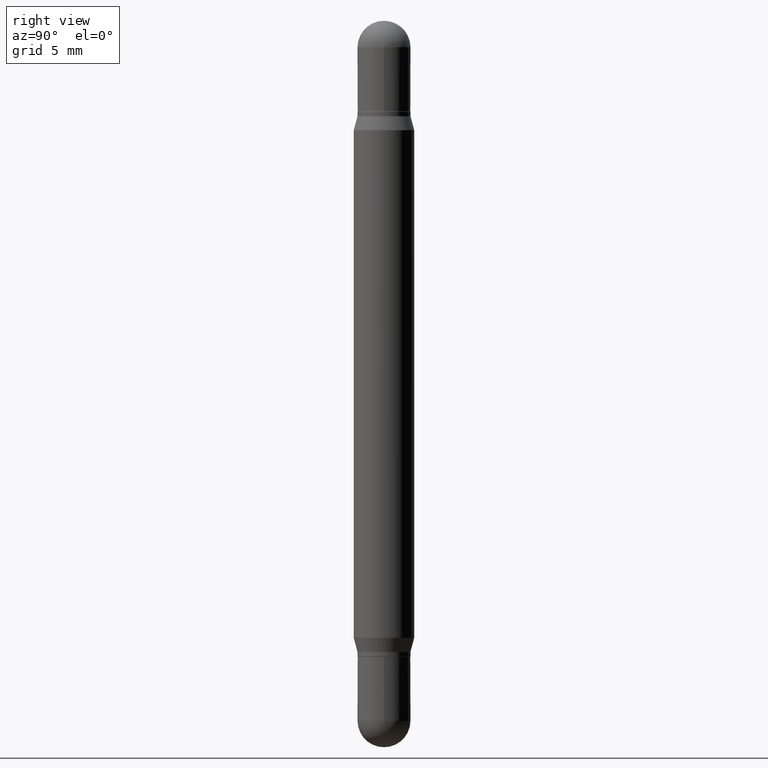
[diagram: clean part render]
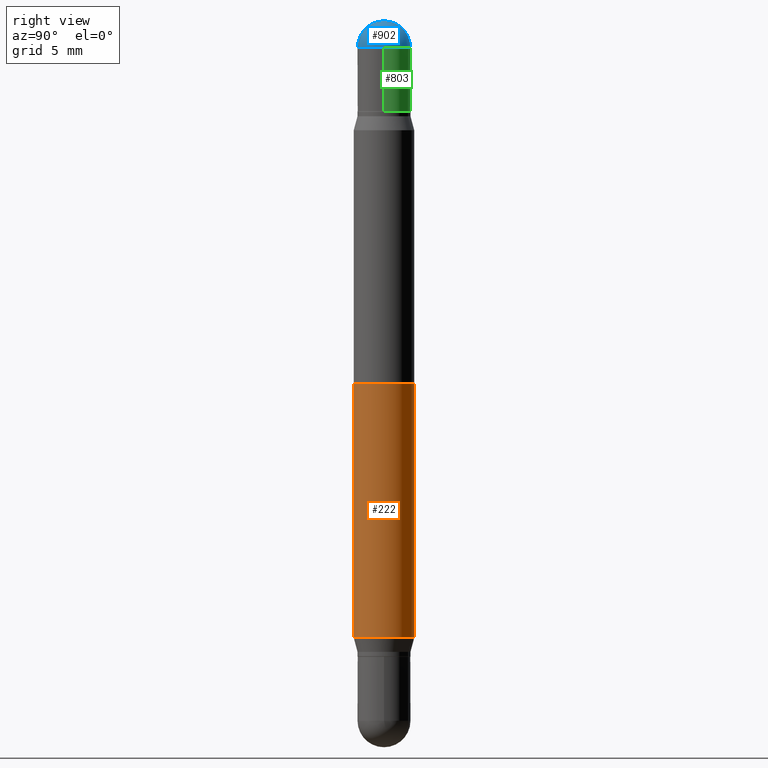
[diagram: same view with three faces highlighted in distinct colors, each labeled with its STEP entity id]
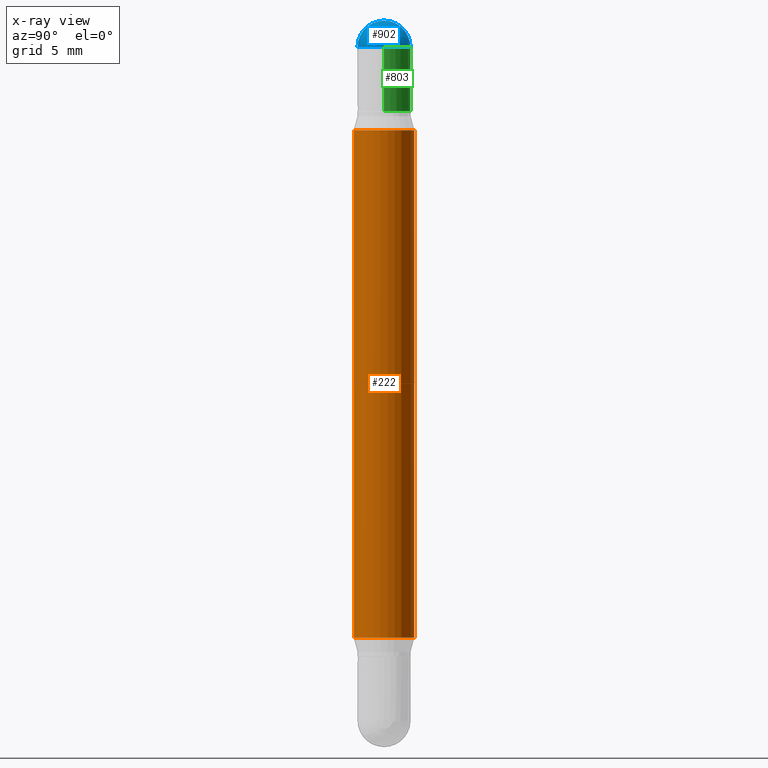
[diagram: x-ray of the same camera — body ghosted, the three highlighted faces saturated]
A machine part, right view with three faces highlighted in distinct colors.
The next image is the same camera in x-ray (body ghosted, the three faces saturated) — at least one of them is partly hidden behind the body in this view.
Their STEP definitions:

[orange] entity #222 — the highlighted cylindrical surface (edge-blend (fillet) strip) has radius 1.5875 mm, axis along (-0, -0, -1).
#43 = DIRECTION ( 'NONE',  ( -6.982962677686265922E-15, -1.000000000000000000, 4.370956789862821150E-15 ) ) ;
#83 = CYLINDRICAL_SURFACE ( 'NONE', #817, 0.06250000000000000000 ) ;
#109 = DIRECTION ( 'NONE',  ( 2.445489716498267051E-29, 3.479644411736372261E-15, 1.000000000000000000 ) ) ;
#165 = FACE_OUTER_BOUND ( 'NONE', #477, .T. ) ;
#168 = AXIS2_PLACEMENT_3D ( 'NONE', #550, #810, #43 ) ;
#200 = VERTEX_POINT ( 'NONE', #1025 ) ;
#207 = VECTOR ( 'NONE', #775, 39.37007874015748143 ) ;
#222 = ADVANCED_FACE ( 'NONE', ( #165 ), #83, .T. ) ;
#244 = DIRECTION ( 'NONE',  ( -6.982962677686265922E-15, -1.000000000000000000, 4.370956789862821150E-15 ) ) ;
#247 = CARTESIAN_POINT ( 'NONE',  ( 4.287811248607206733E-16, 0.06249999999999477501, -1.500000000000000666 ) ) ;
#274 = ORIENTED_EDGE ( 'NONE', *, *, #483, .T. ) ;
#281 = AXIS2_PLACEMENT_3D ( 'NONE', #537, #109, #1063 ) ;
#311 = EDGE_CURVE ( 'NONE', #1095, #782, #435, .T. ) ;
#385 = LINE ( 'NONE', #719, #416 ) ;
#390 = ORIENTED_EDGE ( 'NONE', *, *, #802, .T. ) ;
#416 = VECTOR ( 'NONE', #731, 39.37007874015748143 ) ;
#421 = CARTESIAN_POINT ( 'NONE',  ( 0.000000000000000000, -5.228321854365732350E-15, -1.500000000000000444 ) ) ;
#435 = CIRCLE ( 'NONE', #281, 0.06250000000000000000 ) ;
#441 = CARTESIAN_POINT ( 'NONE',  ( -4.364351673553605094E-16, -0.06250000000000079103, -0.2261099962990385792 ) ) ;
#475 = VERTEX_POINT ( 'NONE', #648 ) ;
#477 = EDGE_LOOP ( 'NONE', ( #860, #734, #390, #274 ) ) ;
#483 = EDGE_CURVE ( 'NONE', #200, #475, #741, .T. ) ;
#537 = CARTESIAN_POINT ( 'NONE',  ( 3.115284904000640864E-29, -7.956376218208540482E-16, -0.2261099962990387735 ) ) ;
#550 = CARTESIAN_POINT ( 'NONE',  ( 3.115284904000640864E-29, -4.447725029332160911E-15, -1.273890003700961726 ) ) ;
#588 = LINE ( 'NONE', #247, #207 ) ;
#648 = CARTESIAN_POINT ( 'NONE',  ( 4.287811248607390144E-16, 0.06249999999999555217, -1.273890003700961948 ) ) ;
#719 = CARTESIAN_POINT ( 'NONE',  ( -4.364351673553916201E-16, -0.06250000000000521805, -1.500000000000000222 ) ) ;
#731 = DIRECTION ( 'NONE',  ( -2.445489716498267051E-29, -3.479644411736372655E-15, -1.000000000000000000 ) ) ;
#734 = ORIENTED_EDGE ( 'NONE', *, *, #311, .F. ) ;
#741 = CIRCLE ( 'NONE', #168, 0.06250000000000000000 ) ;
#766 = DIRECTION ( 'NONE',  ( -2.445489716498267051E-29, -3.479644411736372261E-15, -1.000000000000000000 ) ) ;
#775 = DIRECTION ( 'NONE',  ( -2.445489716498267051E-29, -3.479644411736372655E-15, -1.000000000000000000 ) ) ;
#782 = VERTEX_POINT ( 'NONE', #975 ) ;
#802 = EDGE_CURVE ( 'NONE', #1095, #200, #385, .T. ) ;
#810 = DIRECTION ( 'NONE',  ( -2.445489716498267051E-29, 3.491451394084601576E-15, 1.000000000000000000 ) ) ;
#817 = AXIS2_PLACEMENT_3D ( 'NONE', #421, #766, #244 ) ;
#860 = ORIENTED_EDGE ( 'NONE', *, *, #1054, .F. ) ;
#975 = CARTESIAN_POINT ( 'NONE',  ( 4.287811248607517840E-16, 0.06249999999999920203, -0.2261099962990389678 ) ) ;
#1025 = CARTESIAN_POINT ( 'NONE',  ( -4.364351673553604601E-16, -0.06250000000000444089, -1.273890003700961282 ) ) ;
#1054 = EDGE_CURVE ( 'NONE', #782, #475, #588, .T. ) ;
#1063 = DIRECTION ( 'NONE',  ( -6.982962677686265922E-15, -1.000000000000000000, 3.278217592397115862E-15 ) ) ;
#1095 = VERTEX_POINT ( 'NONE', #441 ) ;

[blue] entity #902 — the highlighted spherical surface has radius 1.3894 mm.
#27 = CARTESIAN_POINT ( 'NONE',  ( 3.529758305977566399E-29, -2.059338832340114475E-16, -0.05470000000000037332 ) ) ;
#33 = DIRECTION ( 'NONE',  ( 1.000000000000000000, -6.982962677686268288E-15, 0.000000000000000000 ) ) ;
#62 = ORIENTED_EDGE ( 'NONE', *, *, #1011, .T. ) ;
#80 = VERTEX_POINT ( 'NONE', #646 ) ;
#89 = CARTESIAN_POINT ( 'NONE',  ( 3.534436065579377749E-29, -1.992350652426753183E-16, -0.05470000000000037332 ) ) ;
#108 = CIRCLE ( 'NONE', #632, 0.05470000000000019291 ) ;
#199 = DIRECTION ( 'NONE',  ( -1.000000000000000000, 6.860497997771530774E-15, 5.827999781331232286E-31 ) ) ;
#201 = DIRECTION ( 'NONE',  ( 1.000000000000000000, -6.982962677686268288E-15, 0.000000000000000000 ) ) ;
#210 = DIRECTION ( 'NONE',  ( -1.000000000000000000, 6.982962677686265922E-15, 1.566701062080020624E-31 ) ) ;
#255 = ORIENTED_EDGE ( 'NONE', *, *, #888, .F. ) ;
#265 = CARTESIAN_POINT ( 'NONE',  ( -3.819680584694040760E-16, -0.05470000000000030393, -0.05470000000000018597 ) ) ;
#282 = DIRECTION ( 'NONE',  ( 2.445468806185136597E-29, 3.479614466977828254E-15, 1.000000000000000000 ) ) ;
#287 = CARTESIAN_POINT ( 'NONE',  ( 3.529758305977566399E-29, -2.059338832340114475E-16, -0.05470000000000037332 ) ) ;
#293 = FACE_OUTER_BOUND ( 'NONE', #946, .T. ) ;
#298 = CARTESIAN_POINT ( 'NONE',  ( 3.752692404781387717E-16, 0.05469999999999989454, -0.05470000000000056067 ) ) ;
#301 = AXIS2_PLACEMENT_3D ( 'NONE', #27, #210, #874 ) ;
#350 = CARTESIAN_POINT ( 'NONE',  ( 3.529758305977566399E-29, -2.059338832340114475E-16, -0.05470000000000037332 ) ) ;
#366 = EDGE_CURVE ( 'NONE', #80, #748, #870, .T. ) ;
#374 = SPHERICAL_SURFACE ( 'NONE', #301, 0.05470000000000019291 ) ;
#429 = ORIENTED_EDGE ( 'NONE', *, *, #366, .T. ) ;
#452 = DIRECTION ( 'NONE',  ( 2.445468806185136597E-29, 3.479614466977828254E-15, 1.000000000000000000 ) ) ;
#464 = VERTEX_POINT ( 'NONE', #645 ) ;
#583 = DIRECTION ( 'NONE',  ( 1.000000000000000000, -6.982962677686265922E-15, -1.566701062080016245E-31 ) ) ;
#632 = AXIS2_PLACEMENT_3D ( 'NONE', #350, #583, #948 ) ;
#641 = CIRCLE ( 'NONE', #1022, 0.05470000000000019291 ) ;
#645 = CARTESIAN_POINT ( 'NONE',  ( 3.661186569874987869E-29, -1.894838088599157718E-17, -1.792775245842172799E-16 ) ) ;
#646 = CARTESIAN_POINT ( 'NONE',  ( 0.05470000000000000556, -8.113796207026979199E-16, -0.05470000000000037332 ) ) ;
#743 = ORIENTED_EDGE ( 'NONE', *, *, #825, .T. ) ;
#748 = VERTEX_POINT ( 'NONE', #298 ) ;
#795 = DIRECTION ( 'NONE',  ( -6.860497997771530774E-15, -1.000000000000000000, 0.000000000000000000 ) ) ;
#799 = AXIS2_PLACEMENT_3D ( 'NONE', #89, #452, #33 ) ;
#800 = CIRCLE ( 'NONE', #850, 0.05470000000000000556 ) ;
#825 = EDGE_CURVE ( 'NONE', #1038, #80, #800, .T. ) ;
#850 = AXIS2_PLACEMENT_3D ( 'NONE', #876, #282, #201 ) ;
#870 = CIRCLE ( 'NONE', #799, 0.05470000000000000556 ) ;
#874 = DIRECTION ( 'NONE',  ( -6.982962677686265922E-15, -1.000000000000000000, 3.433538383261744671E-15 ) ) ;
#876 = CARTESIAN_POINT ( 'NONE',  ( 3.534436065579377749E-29, -1.992350652426753183E-16, -0.05470000000000037332 ) ) ;
#888 = EDGE_CURVE ( 'NONE', #464, #748, #641, .T. ) ;
#902 = ADVANCED_FACE ( 'NONE', ( #293 ), #374, .T. ) ;
#946 = EDGE_LOOP ( 'NONE', ( #255, #62, #743, #429 ) ) ;
#948 = DIRECTION ( 'NONE',  ( 6.982962677686266711E-15, 1.000000000000000000, 0.000000000000000000 ) ) ;
#1011 = EDGE_CURVE ( 'NONE', #464, #1038, #108, .T. ) ;
#1022 = AXIS2_PLACEMENT_3D ( 'NONE', #287, #199, #795 ) ;
#1038 = VERTEX_POINT ( 'NONE', #265 ) ;

[green] entity #803 — the highlighted cylindrical surface (edge-blend (fillet) strip) has radius 1.3894 mm, axis along (-0, -0, -1).
#4 = EDGE_LOOP ( 'NONE', ( #185, #101, #19, #246, #647 ) ) ;
#19 = ORIENTED_EDGE ( 'NONE', *, *, #366, .F. ) ;
#23 = DIRECTION ( 'NONE',  ( 1.000000000000000000, -6.982962677686260400E-15, 0.000000000000000000 ) ) ;
#33 = DIRECTION ( 'NONE',  ( 1.000000000000000000, -6.982962677686268288E-15, 0.000000000000000000 ) ) ;
#35 = DIRECTION ( 'NONE',  ( 1.000000000000000000, -6.982962677686268288E-15, 0.000000000000000000 ) ) ;
#73 = CIRCLE ( 'NONE', #732, 0.05470000000000000556 ) ;
#80 = VERTEX_POINT ( 'NONE', #646 ) ;
#89 = CARTESIAN_POINT ( 'NONE',  ( 3.534436065579377749E-29, -1.992350652426753183E-16, -0.05470000000000037332 ) ) ;
#101 = ORIENTED_EDGE ( 'NONE', *, *, #814, .F. ) ;
#107 = CARTESIAN_POINT ( 'NONE',  ( 0.000000000000000000, -5.228321854365732350E-15, -1.500000000000000444 ) ) ;
#112 = DIRECTION ( 'NONE',  ( 2.445468806185136597E-29, 3.479614466977828254E-15, 1.000000000000000000 ) ) ;
#118 = DIRECTION ( 'NONE',  ( 1.000000000000000000, -6.982962677686266711E-15, 0.000000000000000000 ) ) ;
#185 = ORIENTED_EDGE ( 'NONE', *, *, #915, .F. ) ;
#196 = AXIS2_PLACEMENT_3D ( 'NONE', #377, #279, #118 ) ;
#209 = EDGE_CURVE ( 'NONE', #80, #587, #248, .T. ) ;
#225 = VECTOR ( 'NONE', #845, 39.37007874015748143 ) ;
#228 = AXIS2_PLACEMENT_3D ( 'NONE', #107, #967, #23 ) ;
#246 = ORIENTED_EDGE ( 'NONE', *, *, #209, .T. ) ;
#248 = LINE ( 'NONE', #427, #225 ) ;
#279 = DIRECTION ( 'NONE',  ( 2.445468806185136597E-29, 3.479614466977828254E-15, 1.000000000000000000 ) ) ;
#298 = CARTESIAN_POINT ( 'NONE',  ( 3.752692404781387717E-16, 0.05469999999999989454, -0.05470000000000056067 ) ) ;
#366 = EDGE_CURVE ( 'NONE', #80, #748, #870, .T. ) ;
#369 = FACE_OUTER_BOUND ( 'NONE', #4, .T. ) ;
#377 = CARTESIAN_POINT ( 'NONE',  ( 3.210900542521084585E-29, -6.595880592238425060E-16, -0.1870000000000002216 ) ) ;
#427 = CARTESIAN_POINT ( 'NONE',  ( 0.05469999999999999862, -5.610289912835170741E-15, -1.500000000000000444 ) ) ;
#452 = DIRECTION ( 'NONE',  ( 2.445468806185136597E-29, 3.479614466977828254E-15, 1.000000000000000000 ) ) ;
#529 = CYLINDRICAL_SURFACE ( 'NONE', #228, 0.05469999999999999862 ) ;
#543 = DIRECTION ( 'NONE',  ( -2.445468806185136877E-29, -3.479614466977828648E-15, -1.000000000000000000 ) ) ;
#587 = VERTEX_POINT ( 'NONE', #613 ) ;
#613 = CARTESIAN_POINT ( 'NONE',  ( 0.05469999999999999862, -1.041556117693281390E-15, -0.1870000000000002216 ) ) ;
#621 = CIRCLE ( 'NONE', #196, 0.05469999999999999862 ) ;
#646 = CARTESIAN_POINT ( 'NONE',  ( 0.05470000000000000556, -8.113796207026979199E-16, -0.05470000000000037332 ) ) ;
#647 = ORIENTED_EDGE ( 'NONE', *, *, #920, .T. ) ;
#695 = VERTEX_POINT ( 'NONE', #1044 ) ;
#732 = AXIS2_PLACEMENT_3D ( 'NONE', #808, #112, #35 ) ;
#748 = VERTEX_POINT ( 'NONE', #298 ) ;
#781 = CARTESIAN_POINT ( 'NONE',  ( -0.05469999999999999862, -4.853052613887629372E-15, -1.500000000000000444 ) ) ;
#799 = AXIS2_PLACEMENT_3D ( 'NONE', #89, #452, #33 ) ;
#803 = ADVANCED_FACE ( 'NONE', ( #369 ), #529, .T. ) ;
#808 = CARTESIAN_POINT ( 'NONE',  ( 3.534436065579377749E-29, -1.992350652426753183E-16, -0.05470000000000037332 ) ) ;
#814 = EDGE_CURVE ( 'NONE', #748, #695, #73, .T. ) ;
#845 = DIRECTION ( 'NONE',  ( -2.445468806185136877E-29, -3.479614466977828648E-15, -1.000000000000000000 ) ) ;
#870 = CIRCLE ( 'NONE', #799, 0.05470000000000000556 ) ;
#915 = EDGE_CURVE ( 'NONE', #695, #1043, #1070, .T. ) ;
#920 = EDGE_CURVE ( 'NONE', #587, #1043, #621, .T. ) ;
#967 = DIRECTION ( 'NONE',  ( -2.445468806185136597E-29, -3.479614466977828254E-15, -1.000000000000000000 ) ) ;
#973 = VECTOR ( 'NONE', #543, 39.37007874015748143 ) ;
#1043 = VERTEX_POINT ( 'NONE', #1112 ) ;
#1044 = CARTESIAN_POINT ( 'NONE',  ( -0.05470000000000000556, -5.414232175515625545E-17, -0.05470000000000037332 ) ) ;
#1070 = LINE ( 'NONE', #781, #973 ) ;
#1112 = CARTESIAN_POINT ( 'NONE',  ( -0.05469999999999999862, -5.414232175515661906E-17, -0.1870000000000002216 ) ) ;